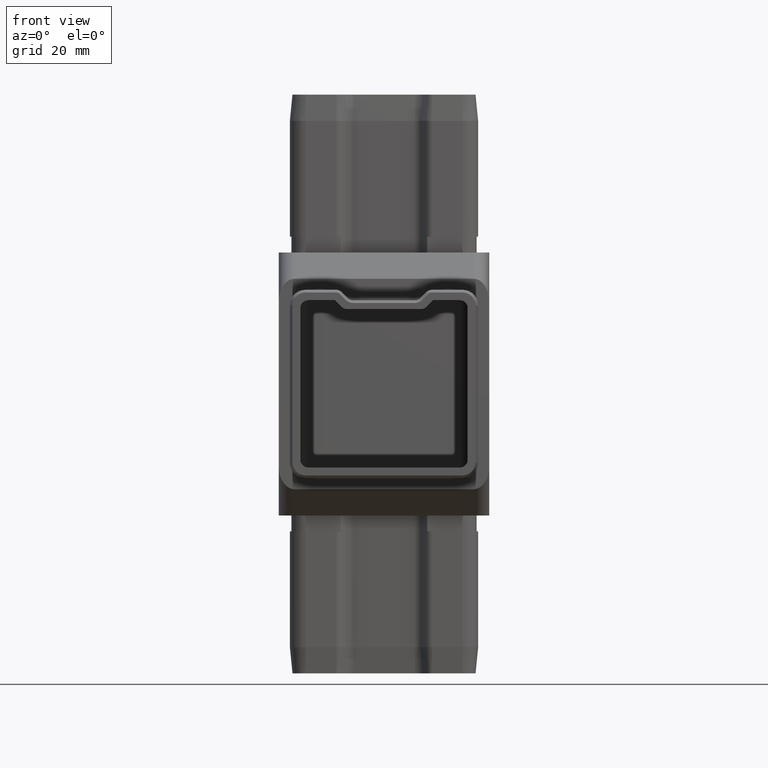
[diagram: clean part render]
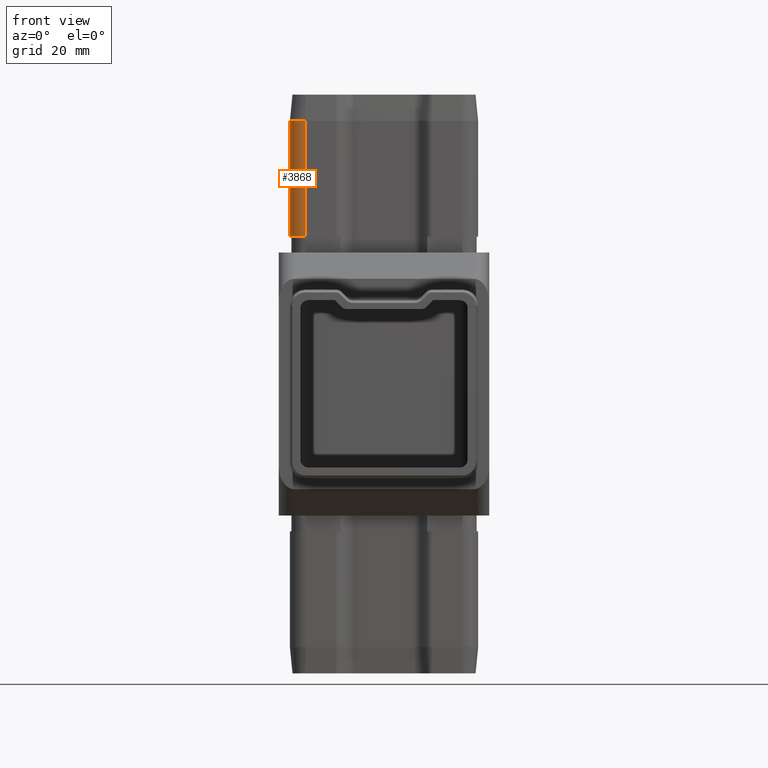
[diagram: same view with one face highlighted and labeled with its STEP entity id]
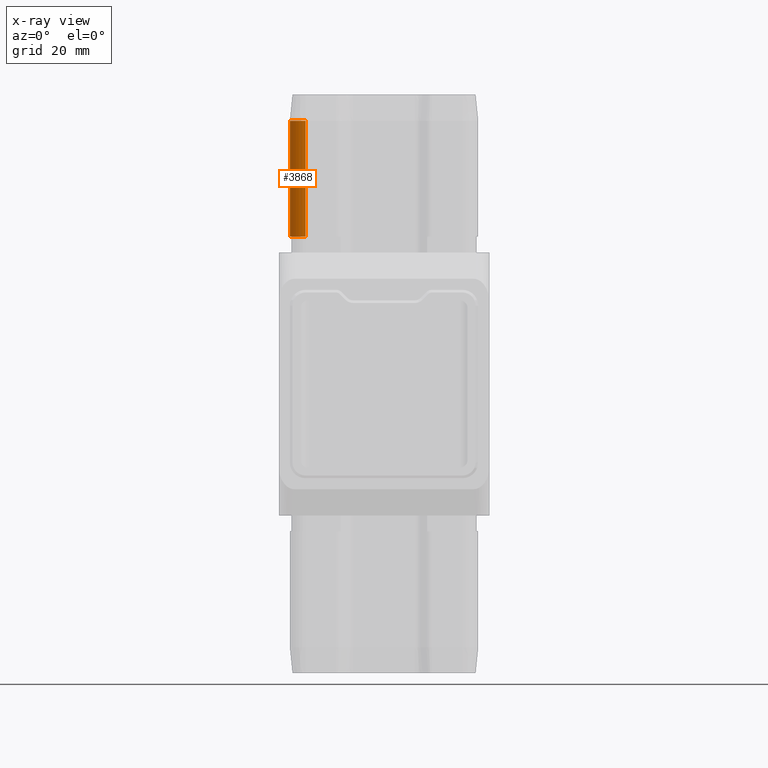
[diagram: x-ray of the same camera — body ghosted, the highlighted face saturated]
A machine part, front view. The second image highlights one B-rep face of the part: STEP entity #3868.
The next image is the same camera in x-ray: the body ghosted, the highlighted face saturated — about 0% of this face is hidden behind the body in this view.
In plain terms, the highlighted cylindrical surface (edge-blend (fillet) strip) has radius 3 mm, axis along (0, 0, -1).
Its self-contained STEP definition (entity closure, byte-faithful):
#273 = FACE_OUTER_BOUND ( 'NONE', #17649, .T. ) ;
#344 = ORIENTED_EDGE ( 'NONE', *, *, #19082, .F. ) ;
#1790 = CARTESIAN_POINT ( 'NONE',  ( -17.90000000000000600, -12.39999999999999900, 50.00000000000000000 ) ) ;
#2506 = ORIENTED_EDGE ( 'NONE', *, *, #4370, .F. ) ;
#2700 = DIRECTION ( 'NONE',  ( 0.0000000000000000000, 0.0000000000000000000, -1.000000000000000000 ) ) ;
#2903 = EDGE_CURVE ( 'NONE', #4483, #10571, #14831, .T. ) ;
#3279 = VERTEX_POINT ( 'NONE', #16271 ) ;
#3313 = LINE ( 'NONE', #14120, #5794 ) ;
#3842 = AXIS2_PLACEMENT_3D ( 'NONE', #9924, #6990, #19761 ) ;
#3868 = ADVANCED_FACE ( 'NONE', ( #273 ), #15521, .T. ) ;
#4370 = EDGE_CURVE ( 'NONE', #10571, #19353, #3313, .T. ) ;
#4483 = VERTEX_POINT ( 'NONE', #14270 ) ;
#5794 = VECTOR ( 'NONE', #7791, 1000.000000000000000 ) ;
#5826 = DIRECTION ( 'NONE',  ( -0.0000000000000000000, -0.0000000000000000000, -1.000000000000000000 ) ) ;
#6176 = EDGE_CURVE ( 'NONE', #3279, #19353, #16777, .T. ) ;
#6200 = CARTESIAN_POINT ( 'NONE',  ( -14.90000000000000600, -15.39999999999999900, 55.00000000000000000 ) ) ;
#6990 = DIRECTION ( 'NONE',  ( -0.0000000000000000000, -0.0000000000000000000, -1.000000000000000000 ) ) ;
#7791 = DIRECTION ( 'NONE',  ( -0.0000000000000000000, -0.0000000000000000000, 1.000000000000000000 ) ) ;
#8603 = ORIENTED_EDGE ( 'NONE', *, *, #6176, .T. ) ;
#8867 = LINE ( 'NONE', #6200, #13620 ) ;
#9924 = CARTESIAN_POINT ( 'NONE',  ( -14.90000000000000600, -12.39999999999999900, 28.00000000000000000 ) ) ;
#10406 = AXIS2_PLACEMENT_3D ( 'NONE', #15402, #15472, #20235 ) ;
#10571 = VERTEX_POINT ( 'NONE', #14280 ) ;
#12677 = ORIENTED_EDGE ( 'NONE', *, *, #2903, .F. ) ;
#13620 = VECTOR ( 'NONE', #2700, 1000.000000000000000 ) ;
#13769 = CARTESIAN_POINT ( 'NONE',  ( -14.90000000000000600, -12.39999999999999900, 50.00000000000000000 ) ) ;
#13832 = DIRECTION ( 'NONE',  ( -1.000000000000000000, 0.0000000000000000000, 0.0000000000000000000 ) ) ;
#14120 = CARTESIAN_POINT ( 'NONE',  ( -17.90000000000000200, -12.39999999999999900, 55.00000000000000000 ) ) ;
#14270 = CARTESIAN_POINT ( 'NONE',  ( -14.90000000000000600, -15.39999999999999000, 28.00000000000000000 ) ) ;
#14280 = CARTESIAN_POINT ( 'NONE',  ( -17.89999999999999900, -12.39999999999999900, 28.00000000000000000 ) ) ;
#14831 = CIRCLE ( 'NONE', #3842, 2.999999999999993800 ) ;
#15402 = CARTESIAN_POINT ( 'NONE',  ( -14.90000000000000600, -12.39999999999999900, 55.00000000000000000 ) ) ;
#15472 = DIRECTION ( 'NONE',  ( 0.0000000000000000000, 0.0000000000000000000, -1.000000000000000000 ) ) ;
#15521 = CYLINDRICAL_SURFACE ( 'NONE', #10406, 3.000000000000000900 ) ;
#16271 = CARTESIAN_POINT ( 'NONE',  ( -14.90000000000000600, -15.39999999999999700, 50.00000000000000000 ) ) ;
#16777 = CIRCLE ( 'NONE', #17769, 3.000000000000000900 ) ;
#17649 = EDGE_LOOP ( 'NONE', ( #8603, #2506, #12677, #344 ) ) ;
#17769 = AXIS2_PLACEMENT_3D ( 'NONE', #13769, #5826, #13832 ) ;
#19082 = EDGE_CURVE ( 'NONE', #3279, #4483, #8867, .T. ) ;
#19353 = VERTEX_POINT ( 'NONE', #1790 ) ;
#19761 = DIRECTION ( 'NONE',  ( -1.000000000000000000, 0.0000000000000000000, 0.0000000000000000000 ) ) ;
#20235 = DIRECTION ( 'NONE',  ( -1.000000000000000000, 0.0000000000000000000, 0.0000000000000000000 ) ) ;